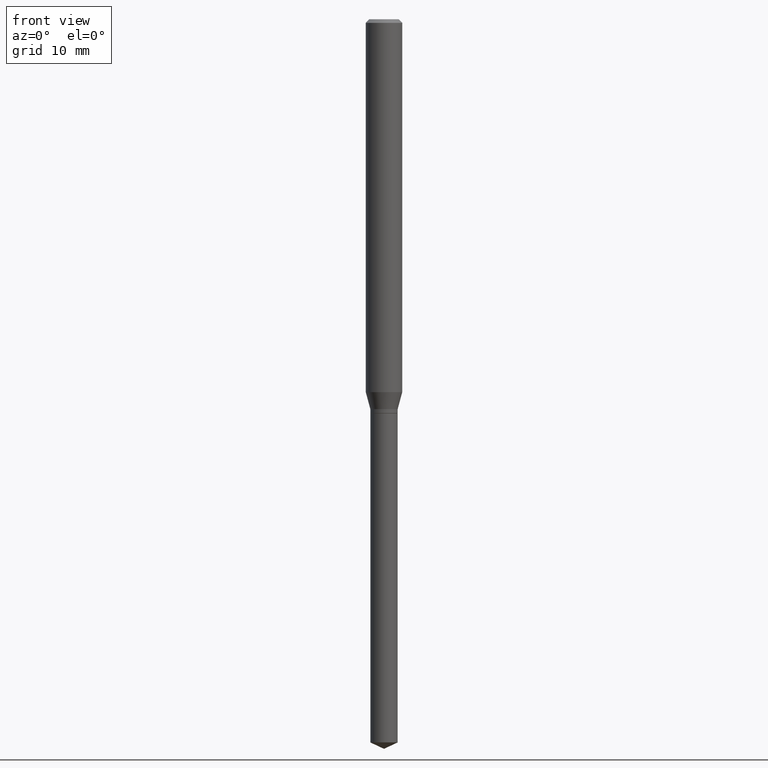
[diagram: clean part render]
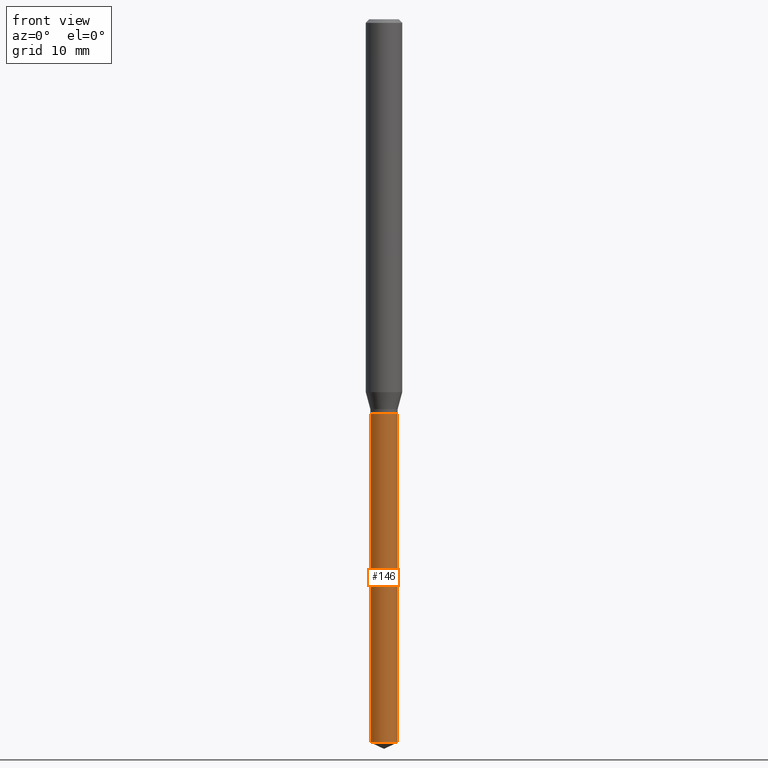
[diagram: same view with one face highlighted and labeled with its STEP entity id]
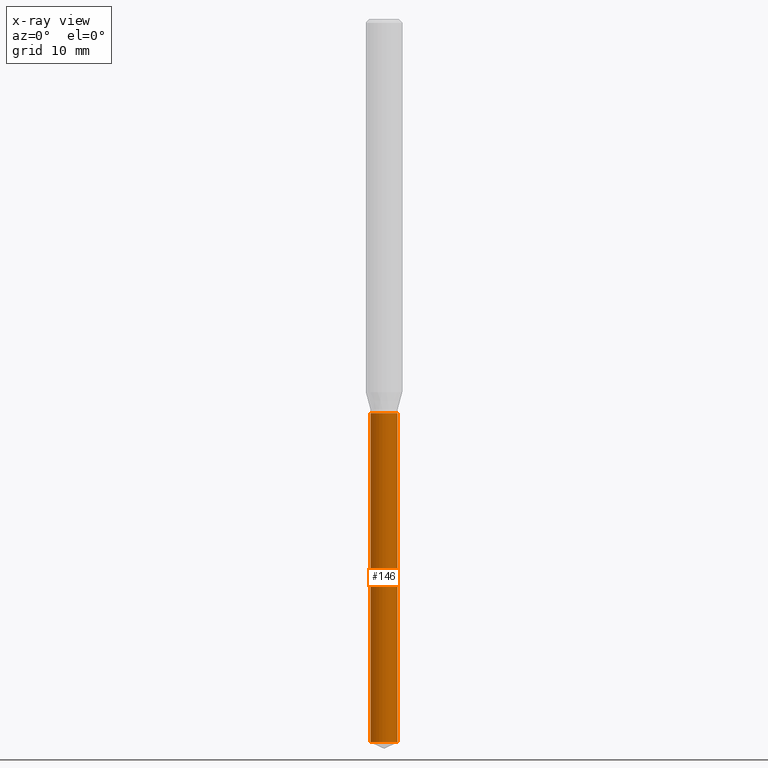
[diagram: x-ray of the same camera — body ghosted, the highlighted face saturated]
A machine part, front view. The second image highlights one B-rep face of the part: STEP entity #146.
The next image is the same camera in x-ray: the body ghosted, the highlighted face saturated — about 0% of this face is hidden behind the body in this view.
In plain terms, the highlighted cylindrical surface (edge-blend (fillet) strip) has radius 1.1252 mm, axis along (-0, 0, 1).
Its self-contained STEP definition (entity closure, byte-faithful):
#1 = VECTOR ( 'NONE', #345, 39.37007874015748143 ) ;
#5 = EDGE_CURVE ( 'NONE', #24, #148, #385, .T. ) ;
#8 = CARTESIAN_POINT ( 'NONE',  ( -0.04429999999999999910, -4.138963163886592184E-15, -1.275599999999999845 ) ) ;
#24 = VERTEX_POINT ( 'NONE', #471 ) ;
#41 = DIRECTION ( 'NONE',  ( -2.445468806185136877E-29, 3.491481338843145188E-15, 1.000000000000000000 ) ) ;
#43 = CARTESIAN_POINT ( 'NONE',  ( 5.726169315108353450E-29, -8.175452189858550487E-15, -2.341542570743733176 ) ) ;
#56 = CARTESIAN_POINT ( 'NONE',  ( 3.119440009169759514E-29, -4.453733595828316609E-15, -1.275599999999999845 ) ) ;
#59 = CIRCLE ( 'NONE', #407, 0.04429999999999999910 ) ;
#63 = VERTEX_POINT ( 'NONE', #123 ) ;
#73 = LINE ( 'NONE', #184, #1 ) ;
#83 = DIRECTION ( 'NONE',  ( 1.000000000000000000, -6.982962677686269077E-15, 0.000000000000000000 ) ) ;
#123 = CARTESIAN_POINT ( 'NONE',  ( 0.04429999999999999910, -4.763078842449818086E-15, -1.275599999999999845 ) ) ;
#124 = AXIS2_PLACEMENT_3D ( 'NONE', #323, #204, #473 ) ;
#136 = EDGE_CURVE ( 'NONE', #148, #63, #191, .T. ) ;
#146 = ADVANCED_FACE ( 'NONE', ( #313 ), #362, .T. ) ;
#147 = DIRECTION ( 'NONE',  ( 1.000000000000000000, -6.982962677686269077E-15, 0.000000000000000000 ) ) ;
#148 = VERTEX_POINT ( 'NONE', #274 ) ;
#184 = CARTESIAN_POINT ( 'NONE',  ( 0.04429999999999999910, -4.763078842449818086E-15, -1.275599999999999845 ) ) ;
#190 = VECTOR ( 'NONE', #41, 39.37007874015748143 ) ;
#191 = CIRCLE ( 'NONE', #381, 0.04429999999999999910 ) ;
#198 = DIRECTION ( 'NONE',  ( -2.445468806185136597E-29, 3.491481338843145583E-15, 1.000000000000000000 ) ) ;
#204 = DIRECTION ( 'NONE',  ( -2.445468806185136597E-29, 3.491481338843145583E-15, 1.000000000000000000 ) ) ;
#213 = VERTEX_POINT ( 'NONE', #446 ) ;
#274 = CARTESIAN_POINT ( 'NONE',  ( -0.04429999999999999910, -5.999822460901709912E-15, -1.275599999999999845 ) ) ;
#313 = FACE_OUTER_BOUND ( 'NONE', #479, .T. ) ;
#323 = CARTESIAN_POINT ( 'NONE',  ( 3.119440009169759514E-29, -4.453733595828316609E-15, -1.275599999999999845 ) ) ;
#340 = DIRECTION ( 'NONE',  ( -2.445468806185136597E-29, 3.491481338843145583E-15, 1.000000000000000000 ) ) ;
#345 = DIRECTION ( 'NONE',  ( -2.445468806185136877E-29, 3.491481338843145188E-15, 1.000000000000000000 ) ) ;
#362 = CYLINDRICAL_SURFACE ( 'NONE', #124, 0.04429999999999999910 ) ;
#381 = AXIS2_PLACEMENT_3D ( 'NONE', #56, #198, #83 ) ;
#385 = LINE ( 'NONE', #8, #190 ) ;
#407 = AXIS2_PLACEMENT_3D ( 'NONE', #43, #340, #147 ) ;
#409 = ORIENTED_EDGE ( 'NONE', *, *, #452, .T. ) ;
#446 = CARTESIAN_POINT ( 'NONE',  ( 0.04430000000000000604, -8.484797436480053541E-15, -2.341542570743733176 ) ) ;
#451 = ORIENTED_EDGE ( 'NONE', *, *, #5, .F. ) ;
#452 = EDGE_CURVE ( 'NONE', #213, #63, #73, .T. ) ;
#454 = ORIENTED_EDGE ( 'NONE', *, *, #136, .F. ) ;
#470 = EDGE_CURVE ( 'NONE', #24, #213, #59, .T. ) ;
#471 = CARTESIAN_POINT ( 'NONE',  ( -0.04430000000000000604, -7.860681757916827639E-15, -2.341542570743733176 ) ) ;
#473 = DIRECTION ( 'NONE',  ( 1.000000000000000000, -6.982962677686269077E-15, 0.000000000000000000 ) ) ;
#476 = ORIENTED_EDGE ( 'NONE', *, *, #470, .T. ) ;
#479 = EDGE_LOOP ( 'NONE', ( #451, #476, #409, #454 ) ) ;